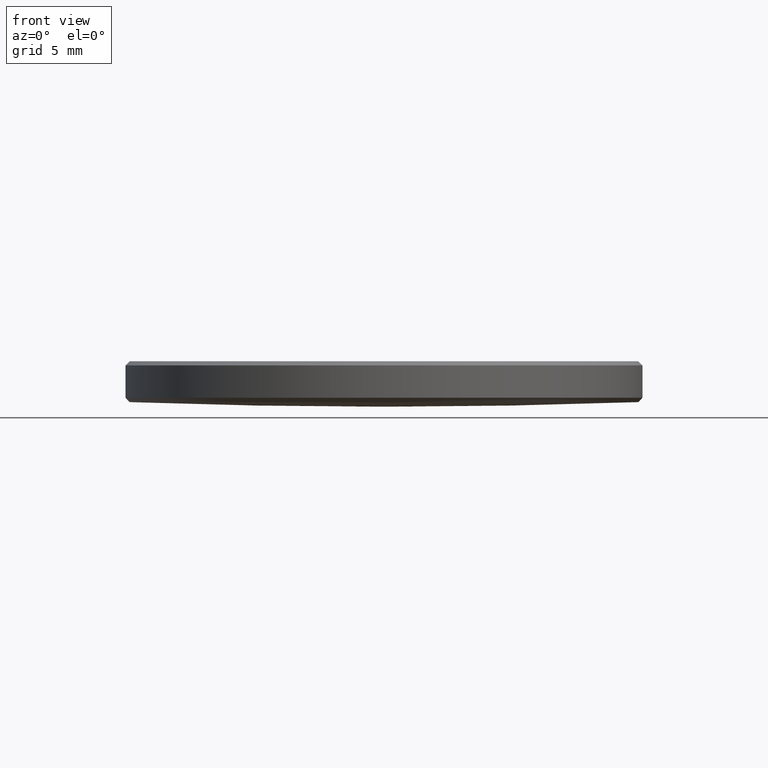
[diagram: clean part render]
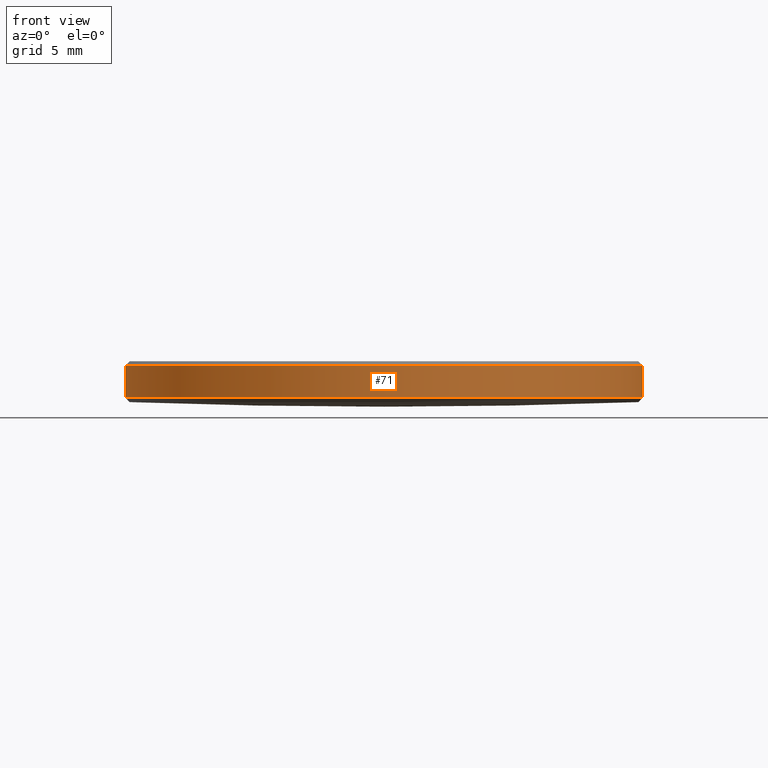
[diagram: same view with one face highlighted and labeled with its STEP entity id]
A machine part, front view. The second image highlights one B-rep face of the part: STEP entity #71.
In plain terms, the highlighted cylindrical surface (partial cylindrical patch) has radius 12.7 mm, axis along (-0, -0, -1).
Its self-contained STEP definition (entity closure, byte-faithful):
#5 = VERTEX_POINT ( 'NONE', #166 ) ;
#6 = EDGE_CURVE ( 'NONE', #70, #101, #99, .T. ) ;
#10 = DIRECTION ( 'NONE',  ( -1.000000000000000000, 0.000000000000000000, 0.000000000000000000 ) ) ;
#14 = CIRCLE ( 'NONE', #211, 12.69999999999999929 ) ;
#29 = AXIS2_PLACEMENT_3D ( 'NONE', #291, #39, #141 ) ;
#39 = DIRECTION ( 'NONE',  ( 0.000000000000000000, 0.000000000000000000, -1.000000000000000000 ) ) ;
#43 = ORIENTED_EDGE ( 'NONE', *, *, #257, .T. ) ;
#45 = ORIENTED_EDGE ( 'NONE', *, *, #240, .F. ) ;
#46 = LINE ( 'NONE', #91, #56 ) ;
#54 = CARTESIAN_POINT ( 'NONE',  ( -12.69999999999999929, 0.000000000000000000, 5.800000000000471445 ) ) ;
#56 = VECTOR ( 'NONE', #278, 1000.000000000000000 ) ;
#69 = DIRECTION ( 'NONE',  ( -1.000000000000000000, 0.000000000000000000, 0.000000000000000000 ) ) ;
#70 = VERTEX_POINT ( 'NONE', #165 ) ;
#71 = ADVANCED_FACE ( 'NONE', ( #168 ), #143, .T. ) ;
#91 = CARTESIAN_POINT ( 'NONE',  ( 12.69999999999999929, 1.555301434917138433E-15, 10.00000000000000000 ) ) ;
#99 = CIRCLE ( 'NONE', #29, 12.69999999999999929 ) ;
#101 = VERTEX_POINT ( 'NONE', #54 ) ;
#116 = VECTOR ( 'NONE', #155, 1000.000000000000000 ) ;
#141 = DIRECTION ( 'NONE',  ( 1.000000000000000000, 0.000000000000000000, 0.000000000000000000 ) ) ;
#143 = CYLINDRICAL_SURFACE ( 'NONE', #176, 12.69999999999999929 ) ;
#150 = LINE ( 'NONE', #303, #116 ) ;
#154 = EDGE_LOOP ( 'NONE', ( #45, #161, #43, #332 ) ) ;
#155 = DIRECTION ( 'NONE',  ( -0.000000000000000000, -0.000000000000000000, -1.000000000000000000 ) ) ;
#161 = ORIENTED_EDGE ( 'NONE', *, *, #6, .T. ) ;
#165 = CARTESIAN_POINT ( 'NONE',  ( 12.69999999999999929, 1.555301434917138433E-15, 5.800000000000471445 ) ) ;
#166 = CARTESIAN_POINT ( 'NONE',  ( -12.69999999999999929, 0.000000000000000000, 4.207718915923863712 ) ) ;
#168 = FACE_OUTER_BOUND ( 'NONE', #154, .T. ) ;
#176 = AXIS2_PLACEMENT_3D ( 'NONE', #234, #239, #10 ) ;
#179 = CARTESIAN_POINT ( 'NONE',  ( 0.000000000000000000, 0.000000000000000000, 4.207718915923863712 ) ) ;
#203 = DIRECTION ( 'NONE',  ( -0.000000000000000000, -0.000000000000000000, 1.000000000000000000 ) ) ;
#211 = AXIS2_PLACEMENT_3D ( 'NONE', #179, #203, #69 ) ;
#223 = EDGE_CURVE ( 'NONE', #5, #260, #14, .T. ) ;
#234 = CARTESIAN_POINT ( 'NONE',  ( 0.000000000000000000, 0.000000000000000000, 10.00000000000000000 ) ) ;
#239 = DIRECTION ( 'NONE',  ( -0.000000000000000000, -0.000000000000000000, -1.000000000000000000 ) ) ;
#240 = EDGE_CURVE ( 'NONE', #70, #260, #46, .T. ) ;
#257 = EDGE_CURVE ( 'NONE', #101, #5, #150, .T. ) ;
#260 = VERTEX_POINT ( 'NONE', #272 ) ;
#272 = CARTESIAN_POINT ( 'NONE',  ( 12.69999999999999929, 1.555301434917138433E-15, 4.207718915923863712 ) ) ;
#278 = DIRECTION ( 'NONE',  ( -0.000000000000000000, -0.000000000000000000, -1.000000000000000000 ) ) ;
#291 = CARTESIAN_POINT ( 'NONE',  ( 0.000000000000000000, 0.000000000000000000, 5.800000000000471445 ) ) ;
#303 = CARTESIAN_POINT ( 'NONE',  ( -12.69999999999999929, 0.000000000000000000, 10.00000000000000000 ) ) ;
#332 = ORIENTED_EDGE ( 'NONE', *, *, #223, .T. ) ;